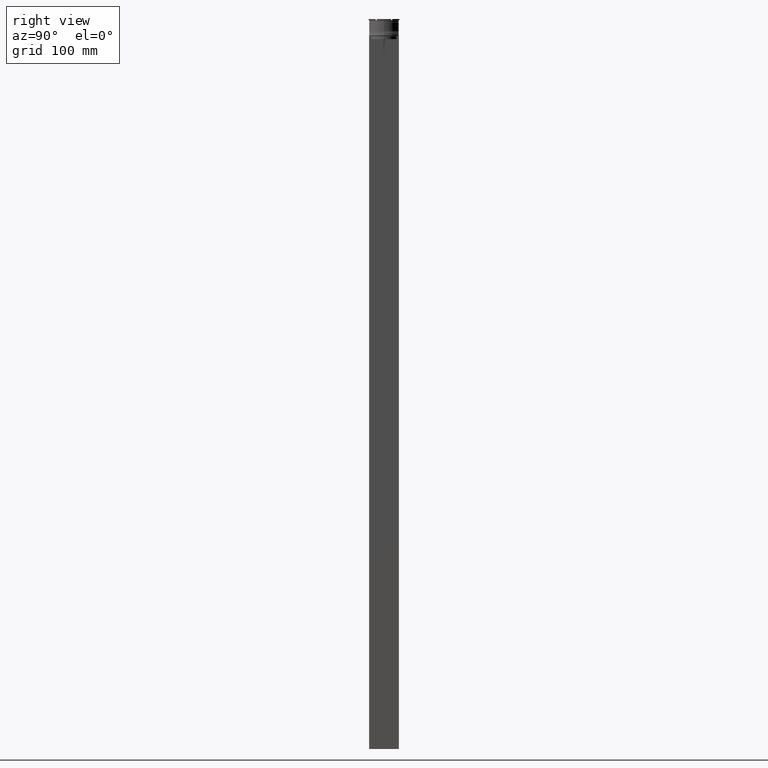
[diagram: clean part render]
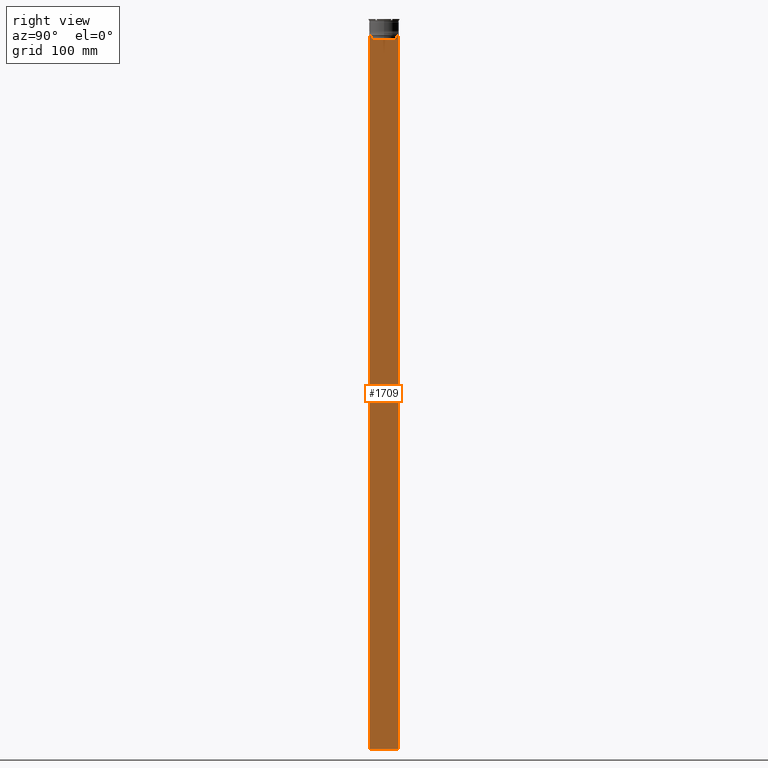
[diagram: same view with one face highlighted and labeled with its STEP entity id]
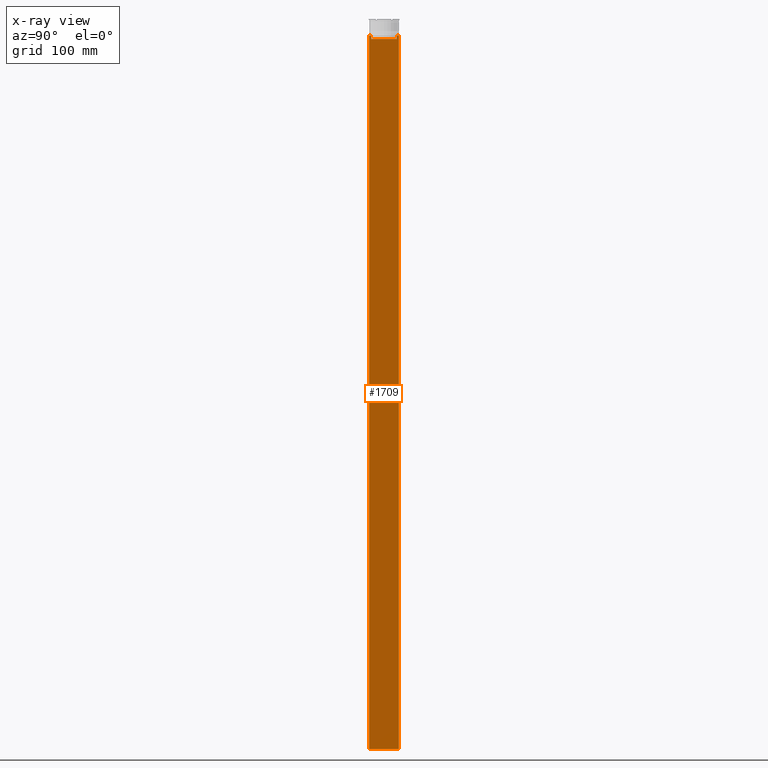
[diagram: x-ray of the same camera — body ghosted, the highlighted face saturated]
A machine part, right view. The second image highlights one B-rep face of the part: STEP entity #1709.
The next image is the same camera in x-ray: the body ghosted, the highlighted face saturated — about 0% of this face is hidden behind the body in this view.
In plain terms, the highlighted planar face has unit normal (-1, 0, 0).
Its self-contained STEP definition (entity closure, byte-faithful):
#41 = EDGE_CURVE ( 'NONE', #2039, #564, #495, .T. ) ;
#61 = CARTESIAN_POINT ( 'NONE',  ( 0.5000000000000000000, -12.49999999999999289, -14.00000000000000178 ) ) ;
#64 = ORIENTED_EDGE ( 'NONE', *, *, #1450, .T. ) ;
#76 = LINE ( 'NONE', #1868, #1658 ) ;
#78 = DIRECTION ( 'NONE',  ( 0.000000000000000000, -1.000000000000000000, 0.000000000000000000 ) ) ;
#101 = ORIENTED_EDGE ( 'NONE', *, *, #2401, .T. ) ;
#107 = VECTOR ( 'NONE', #2298, 1000.000000000000000 ) ;
#129 = CARTESIAN_POINT ( 'NONE',  ( 0.5000000000000000000, -10.88852607105296322, 0.000000000000000000 ) ) ;
#141 = LINE ( 'NONE', #1471, #1787 ) ;
#161 = CARTESIAN_POINT ( 'NONE',  ( 0.5000000000000000000, -12.49999999999999289, -614.0000000000000000 ) ) ;
#223 = EDGE_CURVE ( 'NONE', #1529, #1051, #371, .T. ) ;
#263 = CARTESIAN_POINT ( 'NONE',  ( 0.5000000000000000000, 10.90000000000000213, -17.00000000000000000 ) ) ;
#264 = VERTEX_POINT ( 'NONE', #2870 ) ;
#274 = PLANE ( 'NONE',  #485 ) ;
#308 = CARTESIAN_POINT ( 'NONE',  ( 0.5000000000000000000, 12.50000000000000711, -614.0000000000000000 ) ) ;
#326 = DIRECTION ( 'NONE',  ( 0.000000000000000000, 1.000000000000000000, 0.000000000000000000 ) ) ;
#348 = VECTOR ( 'NONE', #2427, 1000.000000000000000 ) ;
#371 = LINE ( 'NONE', #161, #1259 ) ;
#373 = CARTESIAN_POINT ( 'NONE',  ( 0.5000000000000000000, -12.49999999999999289, -614.0000000000000000 ) ) ;
#376 = VECTOR ( 'NONE', #78, 1000.000000000000000 ) ;
#379 = CARTESIAN_POINT ( 'NONE',  ( 0.5000000000000000000, -12.49999999999999289, -14.00000000000000178 ) ) ;
#381 = CARTESIAN_POINT ( 'NONE',  ( 0.5000000000000000000, -11.38902980942626719, -14.00000000000000178 ) ) ;
#383 = LINE ( 'NONE', #129, #2861 ) ;
#410 = CARTESIAN_POINT ( 'NONE',  ( 0.5000000000000000000, -10.88852607105296322, -14.50000000000000000 ) ) ;
#485 = AXIS2_PLACEMENT_3D ( 'NONE', #1637, #1589, #2480 ) ;
#495 = LINE ( 'NONE', #61, #376 ) ;
#551 = EDGE_CURVE ( 'NONE', #1005, #2062, #141, .T. ) ;
#564 = VERTEX_POINT ( 'NONE', #1939 ) ;
#568 = EDGE_CURVE ( 'NONE', #1548, #2091, #2246, .T. ) ;
#616 = VECTOR ( 'NONE', #1712, 1000.000000000000000 ) ;
#639 = ORIENTED_EDGE ( 'NONE', *, *, #1884, .T. ) ;
#698 = EDGE_CURVE ( 'NONE', #1499, #1005, #1545, .T. ) ;
#732 = CARTESIAN_POINT ( 'NONE',  ( 0.5000000000000000000, 10.88852607105296322, -14.50000000000000000 ) ) ;
#817 = CARTESIAN_POINT ( 'NONE',  ( 0.5000000000000000000, 10.88852607105296322, -14.50000000000000000 ) ) ;
#852 = VECTOR ( 'NONE', #2748, 1000.000000000000000 ) ;
#880 = CARTESIAN_POINT ( 'NONE',  ( 0.5000000000000000000, 11.38902980942626719, -14.00000000000000178 ) ) ;
#883 = ORIENTED_EDGE ( 'NONE', *, *, #885, .T. ) ;
#885 = EDGE_CURVE ( 'NONE', #2091, #1493, #1601, .T. ) ;
#934 = ORIENTED_EDGE ( 'NONE', *, *, #223, .T. ) ;
#981 = DIRECTION ( 'NONE',  ( 0.000000000000000000, -1.000000000000000000, 0.000000000000000000 ) ) ;
#1005 = VERTEX_POINT ( 'NONE', #2371 ) ;
#1051 = VERTEX_POINT ( 'NONE', #308 ) ;
#1054 = LINE ( 'NONE', #1926, #616 ) ;
#1199 = CARTESIAN_POINT ( 'NONE',  ( 0.5000000000000000000, 11.05536450345590538, -14.33333719074559376 ) ) ;
#1214 = DIRECTION ( 'NONE',  ( 0.000000000000000000, 0.000000000000000000, -1.000000000000000000 ) ) ;
#1218 = VECTOR ( 'NONE', #1214, 1000.000000000000000 ) ;
#1232 = LINE ( 'NONE', #1944, #1218 ) ;
#1259 = VECTOR ( 'NONE', #326, 1000.000000000000000 ) ;
#1277 = ORIENTED_EDGE ( 'NONE', *, *, #1737, .F. ) ;
#1278 = CARTESIAN_POINT ( 'NONE',  ( 0.5000000000000000000, 10.88852607105296144, -17.00000000000000000 ) ) ;
#1447 = EDGE_CURVE ( 'NONE', #564, #1548, #1054, .T. ) ;
#1450 = EDGE_CURVE ( 'NONE', #264, #1529, #1232, .T. ) ;
#1471 = CARTESIAN_POINT ( 'NONE',  ( 0.5000000000000000000, -12.49999999999999289, -14.00000000000000178 ) ) ;
#1493 = VERTEX_POINT ( 'NONE', #1278 ) ;
#1499 = VERTEX_POINT ( 'NONE', #1681 ) ;
#1529 = VERTEX_POINT ( 'NONE', #373 ) ;
#1545 = B_SPLINE_CURVE_WITH_KNOTS ( 'NONE', 3,
 ( #410, #1951, #2866, #381 ),
 .UNSPECIFIED., .F., .F.,
 ( 4, 4 ),
 ( 0.05041323384703226551, 0.05112713601261605068 ),
 .UNSPECIFIED. ) ;
#1548 = VERTEX_POINT ( 'NONE', #880 ) ;
#1567 = ORIENTED_EDGE ( 'NONE', *, *, #41, .T. ) ;
#1589 = DIRECTION ( 'NONE',  ( -1.000000000000000000, 0.000000000000000000, 0.000000000000000000 ) ) ;
#1601 = LINE ( 'NONE', #2273, #107 ) ;
#1637 = CARTESIAN_POINT ( 'NONE',  ( 0.5000000000000000000, -12.49999999999999289, 11.01999200639360765 ) ) ;
#1658 = VECTOR ( 'NONE', #2047, 1000.000000000000000 ) ;
#1681 = CARTESIAN_POINT ( 'NONE',  ( 0.5000000000000000000, -10.88852607105296322, -14.50000000000000000 ) ) ;
#1708 = CARTESIAN_POINT ( 'NONE',  ( 0.5000000000000000000, 11.22219891375843304, -14.16667035472756808 ) ) ;
#1709 = ADVANCED_FACE ( 'NONE', ( #2304 ), #274, .F. ) ;
#1712 = DIRECTION ( 'NONE',  ( 0.000000000000000000, -1.000000000000000000, 0.000000000000000000 ) ) ;
#1737 = EDGE_CURVE ( 'NONE', #2039, #1051, #76, .T. ) ;
#1756 = EDGE_CURVE ( 'NONE', #1493, #2469, #2057, .T. ) ;
#1787 = VECTOR ( 'NONE', #981, 1000.000000000000000 ) ;
#1798 = ORIENTED_EDGE ( 'NONE', *, *, #551, .T. ) ;
#1818 = ORIENTED_EDGE ( 'NONE', *, *, #568, .T. ) ;
#1868 = CARTESIAN_POINT ( 'NONE',  ( 0.5000000000000000000, 12.50000000000000711, 11.01999200639360765 ) ) ;
#1872 = ORIENTED_EDGE ( 'NONE', *, *, #1447, .T. ) ;
#1884 = EDGE_CURVE ( 'NONE', #2469, #1499, #383, .T. ) ;
#1926 = CARTESIAN_POINT ( 'NONE',  ( 0.5000000000000000000, -12.49999999999999289, -14.00000000000000178 ) ) ;
#1939 = CARTESIAN_POINT ( 'NONE',  ( 0.5000000000000000000, 12.38991525394746773, -14.00000000000000178 ) ) ;
#1944 = CARTESIAN_POINT ( 'NONE',  ( 0.5000000000000000000, -12.49999999999999289, 11.01999200639360765 ) ) ;
#1948 = LINE ( 'NONE', #379, #348 ) ;
#1951 = CARTESIAN_POINT ( 'NONE',  ( 0.5000000000000000000, -11.05536450423839234, -14.33333718996393102 ) ) ;
#2039 = VERTEX_POINT ( 'NONE', #2618 ) ;
#2047 = DIRECTION ( 'NONE',  ( 0.000000000000000000, 0.000000000000000000, -1.000000000000000000 ) ) ;
#2050 = ORIENTED_EDGE ( 'NONE', *, *, #698, .T. ) ;
#2057 = LINE ( 'NONE', #263, #852 ) ;
#2062 = VERTEX_POINT ( 'NONE', #2519 ) ;
#2091 = VERTEX_POINT ( 'NONE', #732 ) ;
#2246 = B_SPLINE_CURVE_WITH_KNOTS ( 'NONE', 3,
 ( #2374, #1708, #1199, #817 ),
 .UNSPECIFIED., .F., .F.,
 ( 4, 4 ),
 ( 0.01935560801904634073, 0.02006307108468586772 ),
 .UNSPECIFIED. ) ;
#2273 = CARTESIAN_POINT ( 'NONE',  ( 0.5000000000000000000, 10.88852607105296322, 0.000000000000000000 ) ) ;
#2298 = DIRECTION ( 'NONE',  ( 0.000000000000000000, 0.000000000000000000, -1.000000000000000000 ) ) ;
#2304 = FACE_OUTER_BOUND ( 'NONE', #2526, .T. ) ;
#2329 = DIRECTION ( 'NONE',  ( -0.000000000000000000, -0.000000000000000000, 1.000000000000000000 ) ) ;
#2371 = CARTESIAN_POINT ( 'NONE',  ( 0.5000000000000000000, -11.38902980942626719, -14.00000000000000178 ) ) ;
#2374 = CARTESIAN_POINT ( 'NONE',  ( 0.5000000000000000000, 11.38902980942626719, -14.00000000000000178 ) ) ;
#2401 = EDGE_CURVE ( 'NONE', #2062, #264, #1948, .T. ) ;
#2427 = DIRECTION ( 'NONE',  ( 0.000000000000000000, -1.000000000000000000, 0.000000000000000000 ) ) ;
#2469 = VERTEX_POINT ( 'NONE', #2633 ) ;
#2480 = DIRECTION ( 'NONE',  ( 0.000000000000000000, 0.000000000000000000, 1.000000000000000000 ) ) ;
#2519 = CARTESIAN_POINT ( 'NONE',  ( 0.5000000000000000000, -12.38991525394746773, -14.00000000000000178 ) ) ;
#2526 = EDGE_LOOP ( 'NONE', ( #1872, #1818, #883, #2647, #639, #2050, #1798, #101, #64, #934, #1277, #1567 ) ) ;
#2618 = CARTESIAN_POINT ( 'NONE',  ( 0.5000000000000000000, 12.50000000000000711, -14.00000000000000178 ) ) ;
#2633 = CARTESIAN_POINT ( 'NONE',  ( 0.5000000000000000000, -10.88852607105296144, -17.00000000000000000 ) ) ;
#2647 = ORIENTED_EDGE ( 'NONE', *, *, #1756, .T. ) ;
#2748 = DIRECTION ( 'NONE',  ( 0.000000000000000000, -1.000000000000000000, 0.000000000000000000 ) ) ;
#2861 = VECTOR ( 'NONE', #2329, 1000.000000000000000 ) ;
#2866 = CARTESIAN_POINT ( 'NONE',  ( 0.5000000000000000000, -11.22219891450652973, -14.16667035398018903 ) ) ;
#2870 = CARTESIAN_POINT ( 'NONE',  ( 0.5000000000000000000, -12.49999999999999289, -14.00000000000000178 ) ) ;